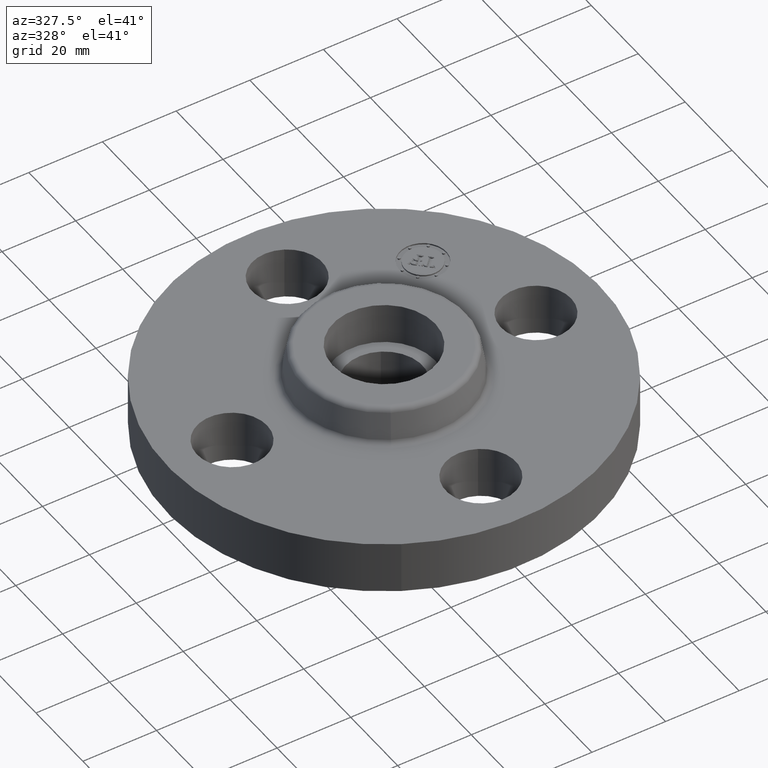
[diagram: clean part render]
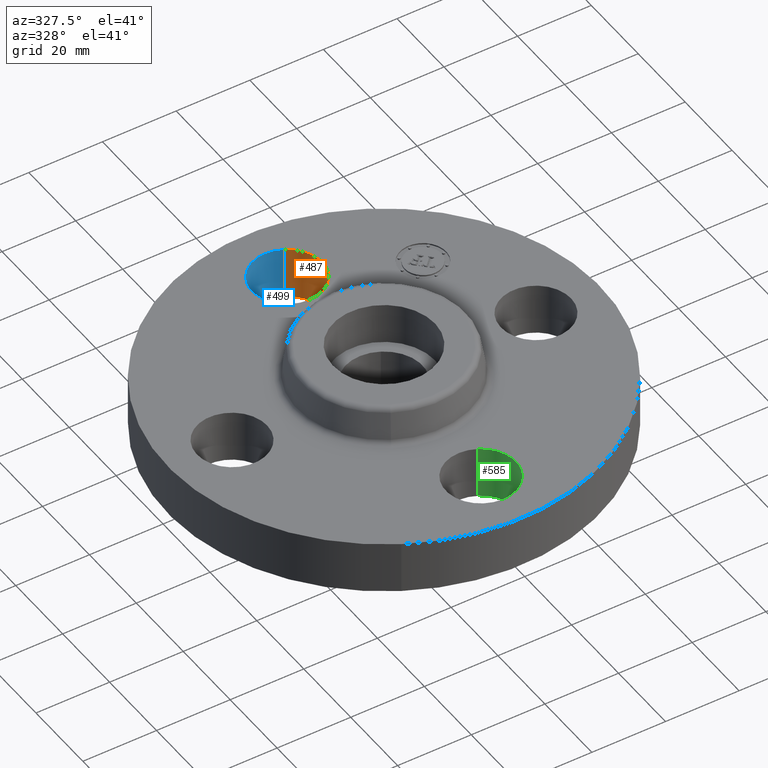
[diagram: same view with three faces highlighted in distinct colors, each labeled with its STEP entity id]
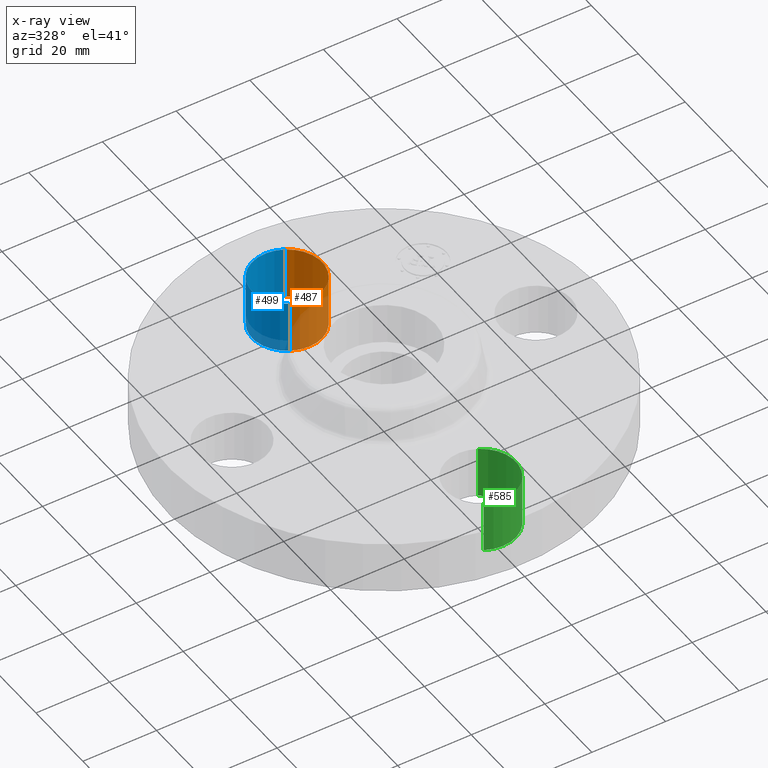
[diagram: x-ray of the same camera — body ghosted, the three highlighted faces saturated]
A machine part, auxiliary view with three faces highlighted in distinct colors.
The next image is the same camera in x-ray (body ghosted, the three faces saturated) — at least one of them is partly hidden behind the body in this view.
Their STEP definitions:

[orange] entity #487 — the highlighted cylindrical surface (partial cylindrical patch) has radius 9.525 mm, axis along (0, 0, -1).
#235=AXIS2_PLACEMENT_3D('Circle Axis2P3D',#233,#234,$) ;
#460=AXIS2_PLACEMENT_3D('Cylinder Axis2P3D',#457,#458,#459) ;
#478=AXIS2_PLACEMENT_3D('Circle Axis2P3D',#476,#477,$) ;
#228=CARTESIAN_POINT('Vertex',(-0.179784576977,1.2959065393,0.)) ;
#230=CARTESIAN_POINT('Vertex',(0.179784576977,1.95409346072,0.)) ;
#233=CARTESIAN_POINT('Axis2P3D Location',(0.,1.62500000001,0.)) ;
#457=CARTESIAN_POINT('Axis2P3D Location',(-2.98507657293E-016,1.62500000001,0.556062992128)) ;
#462=CARTESIAN_POINT('Line Origine',(0.179784576977,1.95409346072,0.280000000001)) ;
#466=CARTESIAN_POINT('Vertex',(0.179784576977,1.95409346072,0.560000000002)) ;
#469=CARTESIAN_POINT('Line Origine',(-0.179784576977,1.2959065393,0.280000000001)) ;
#473=CARTESIAN_POINT('Vertex',(-0.179784576977,1.2959065393,0.560000000002)) ;
#476=CARTESIAN_POINT('Axis2P3D Location',(-2.98507657293E-016,1.62500000001,0.560000000002)) ;
#234=DIRECTION('Axis2P3D Direction',(0.,0.,-0.0393700787402)) ;
#458=DIRECTION('Axis2P3D Direction',(0.,0.,-0.0393700787402)) ;
#459=DIRECTION('Axis2P3D XDirection',(-0.0188750212049,-0.0345504945626,-0.)) ;
#463=DIRECTION('Vector Direction',(0.,0.,-0.0393700787402)) ;
#470=DIRECTION('Vector Direction',(0.,0.,-0.0393700787402)) ;
#477=DIRECTION('Axis2P3D Direction',(0.,0.,-0.0393700787402)) ;
#464=VECTOR('Line Direction',#463,0.0393700787402) ;
#471=VECTOR('Line Direction',#470,0.0393700787402) ;
#482=ORIENTED_EDGE('',*,*,#468,.F.) ;
#483=ORIENTED_EDGE('',*,*,#237,.T.) ;
#484=ORIENTED_EDGE('',*,*,#475,.T.) ;
#485=ORIENTED_EDGE('',*,*,#480,.F.) ;
#487=ADVANCED_FACE('PartBody',(#486),#461,.F.) ;
#236=CIRCLE('generated circle',#235,0.375000000001) ;
#479=CIRCLE('generated circle',#478,0.375000000001) ;
#461=CYLINDRICAL_SURFACE('generated cylinder',#460,0.375000000001) ;
#237=EDGE_CURVE('',#231,#229,#236,.T.) ;
#468=EDGE_CURVE('',#231,#467,#465,.F.) ;
#475=EDGE_CURVE('',#229,#474,#472,.F.) ;
#480=EDGE_CURVE('',#467,#474,#479,.T.) ;
#481=EDGE_LOOP('',(#482,#483,#484,#485)) ;
#486=FACE_OUTER_BOUND('',#481,.T.) ;
#465=LINE('Line',#462,#464) ;
#472=LINE('Line',#469,#471) ;
#229=VERTEX_POINT('',#228) ;
#231=VERTEX_POINT('',#230) ;
#467=VERTEX_POINT('',#466) ;
#474=VERTEX_POINT('',#473) ;

[blue] entity #499 — the highlighted cylindrical surface (partial cylindrical patch) has radius 9.525 mm, axis along (0, 0, -1).
#226=AXIS2_PLACEMENT_3D('Circle Axis2P3D',#224,#225,$) ;
#460=AXIS2_PLACEMENT_3D('Cylinder Axis2P3D',#457,#458,#459) ;
#490=AXIS2_PLACEMENT_3D('Circle Axis2P3D',#488,#489,$) ;
#224=CARTESIAN_POINT('Axis2P3D Location',(-3.84644197508E-016,1.62500000001,0.)) ;
#228=CARTESIAN_POINT('Vertex',(-0.179784576977,1.2959065393,0.)) ;
#230=CARTESIAN_POINT('Vertex',(0.179784576977,1.95409346072,0.)) ;
#457=CARTESIAN_POINT('Axis2P3D Location',(-2.98507657293E-016,1.62500000001,0.556062992128)) ;
#462=CARTESIAN_POINT('Line Origine',(0.179784576977,1.95409346072,0.280000000001)) ;
#466=CARTESIAN_POINT('Vertex',(0.179784576977,1.95409346072,0.560000000002)) ;
#469=CARTESIAN_POINT('Line Origine',(-0.179784576977,1.2959065393,0.280000000001)) ;
#473=CARTESIAN_POINT('Vertex',(-0.179784576977,1.2959065393,0.560000000002)) ;
#488=CARTESIAN_POINT('Axis2P3D Location',(-2.98507657293E-016,1.62500000001,0.560000000002)) ;
#225=DIRECTION('Axis2P3D Direction',(0.,0.,-0.0393700787402)) ;
#458=DIRECTION('Axis2P3D Direction',(0.,0.,-0.0393700787402)) ;
#459=DIRECTION('Axis2P3D XDirection',(-0.0188750212049,-0.0345504945626,-0.)) ;
#463=DIRECTION('Vector Direction',(0.,0.,-0.0393700787402)) ;
#470=DIRECTION('Vector Direction',(0.,0.,-0.0393700787402)) ;
#489=DIRECTION('Axis2P3D Direction',(0.,0.,-0.0393700787402)) ;
#464=VECTOR('Line Direction',#463,0.0393700787402) ;
#471=VECTOR('Line Direction',#470,0.0393700787402) ;
#494=ORIENTED_EDGE('',*,*,#475,.F.) ;
#495=ORIENTED_EDGE('',*,*,#232,.T.) ;
#496=ORIENTED_EDGE('',*,*,#468,.T.) ;
#497=ORIENTED_EDGE('',*,*,#492,.F.) ;
#499=ADVANCED_FACE('PartBody',(#498),#461,.F.) ;
#227=CIRCLE('generated circle',#226,0.375000000001) ;
#491=CIRCLE('generated circle',#490,0.375000000001) ;
#461=CYLINDRICAL_SURFACE('generated cylinder',#460,0.375000000001) ;
#232=EDGE_CURVE('',#229,#231,#227,.T.) ;
#468=EDGE_CURVE('',#231,#467,#465,.F.) ;
#475=EDGE_CURVE('',#229,#474,#472,.F.) ;
#492=EDGE_CURVE('',#474,#467,#491,.T.) ;
#493=EDGE_LOOP('',(#494,#495,#496,#497)) ;
#498=FACE_OUTER_BOUND('',#493,.T.) ;
#465=LINE('Line',#462,#464) ;
#472=LINE('Line',#469,#471) ;
#229=VERTEX_POINT('',#228) ;
#231=VERTEX_POINT('',#230) ;
#467=VERTEX_POINT('',#466) ;
#474=VERTEX_POINT('',#473) ;

[green] entity #585 — the highlighted cylindrical surface (partial cylindrical patch) has radius 9.525 mm, axis along (0, -0, -1).
#190=AXIS2_PLACEMENT_3D('Circle Axis2P3D',#188,#189,$) ;
#546=AXIS2_PLACEMENT_3D('Cylinder Axis2P3D',#543,#544,#545) ;
#576=AXIS2_PLACEMENT_3D('Circle Axis2P3D',#574,#575,$) ;
#188=CARTESIAN_POINT('Axis2P3D Location',(-1.39870617276E-016,-1.62500000001,0.)) ;
#192=CARTESIAN_POINT('Vertex',(0.179784576977,-1.2959065393,0.)) ;
#194=CARTESIAN_POINT('Vertex',(-0.179784576977,-1.95409346072,0.)) ;
#543=CARTESIAN_POINT('Axis2P3D Location',(-1.8023868212E-016,-1.62500000001,0.556062992128)) ;
#548=CARTESIAN_POINT('Line Origine',(-0.179784576977,-1.95409346072,0.280000000001)) ;
#552=CARTESIAN_POINT('Vertex',(-0.179784576977,-1.95409346072,0.560000000002)) ;
#555=CARTESIAN_POINT('Line Origine',(0.179784576977,-1.2959065393,0.280000000001)) ;
#559=CARTESIAN_POINT('Vertex',(0.179784576977,-1.2959065393,0.560000000002)) ;
#574=CARTESIAN_POINT('Axis2P3D Location',(-1.8023868212E-016,-1.62500000001,0.560000000002)) ;
#189=DIRECTION('Axis2P3D Direction',(0.,0.,-0.0393700787402)) ;
#544=DIRECTION('Axis2P3D Direction',(0.,-0.,-0.0393700787402)) ;
#545=DIRECTION('Axis2P3D XDirection',(0.0188750212049,0.0345504945626,-0.)) ;
#549=DIRECTION('Vector Direction',(0.,0.,-0.0393700787402)) ;
#556=DIRECTION('Vector Direction',(0.,0.,-0.0393700787402)) ;
#575=DIRECTION('Axis2P3D Direction',(0.,-0.,-0.0393700787402)) ;
#550=VECTOR('Line Direction',#549,0.0393700787402) ;
#557=VECTOR('Line Direction',#556,0.0393700787402) ;
#580=ORIENTED_EDGE('',*,*,#561,.F.) ;
#581=ORIENTED_EDGE('',*,*,#196,.T.) ;
#582=ORIENTED_EDGE('',*,*,#554,.T.) ;
#583=ORIENTED_EDGE('',*,*,#578,.F.) ;
#585=ADVANCED_FACE('PartBody',(#584),#547,.F.) ;
#191=CIRCLE('generated circle',#190,0.375000000001) ;
#577=CIRCLE('generated circle',#576,0.375000000001) ;
#547=CYLINDRICAL_SURFACE('generated cylinder',#546,0.375000000001) ;
#196=EDGE_CURVE('',#193,#195,#191,.T.) ;
#554=EDGE_CURVE('',#195,#553,#551,.F.) ;
#561=EDGE_CURVE('',#193,#560,#558,.F.) ;
#578=EDGE_CURVE('',#560,#553,#577,.T.) ;
#579=EDGE_LOOP('',(#580,#581,#582,#583)) ;
#584=FACE_OUTER_BOUND('',#579,.T.) ;
#551=LINE('Line',#548,#550) ;
#558=LINE('Line',#555,#557) ;
#193=VERTEX_POINT('',#192) ;
#195=VERTEX_POINT('',#194) ;
#553=VERTEX_POINT('',#552) ;
#560=VERTEX_POINT('',#559) ;